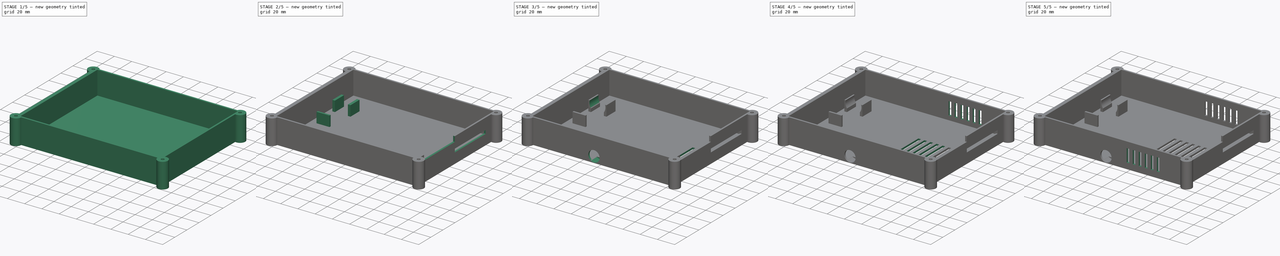
[diagram: build sequence overview — one tinted view per stage of 5, left to right]
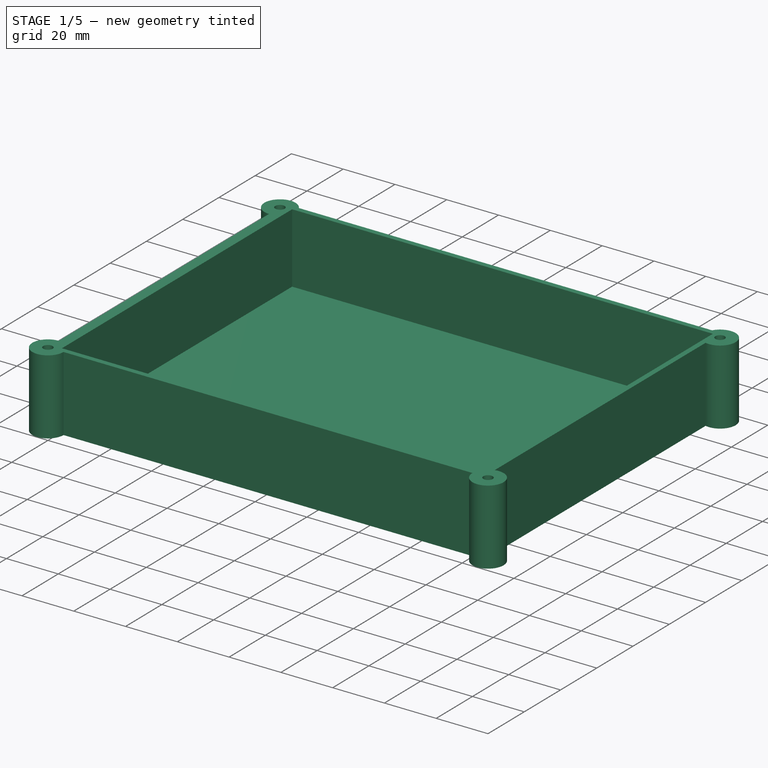
[diagram: stage 1 of 5 — iso view after this stage's code; geometry added in this stage tinted green]
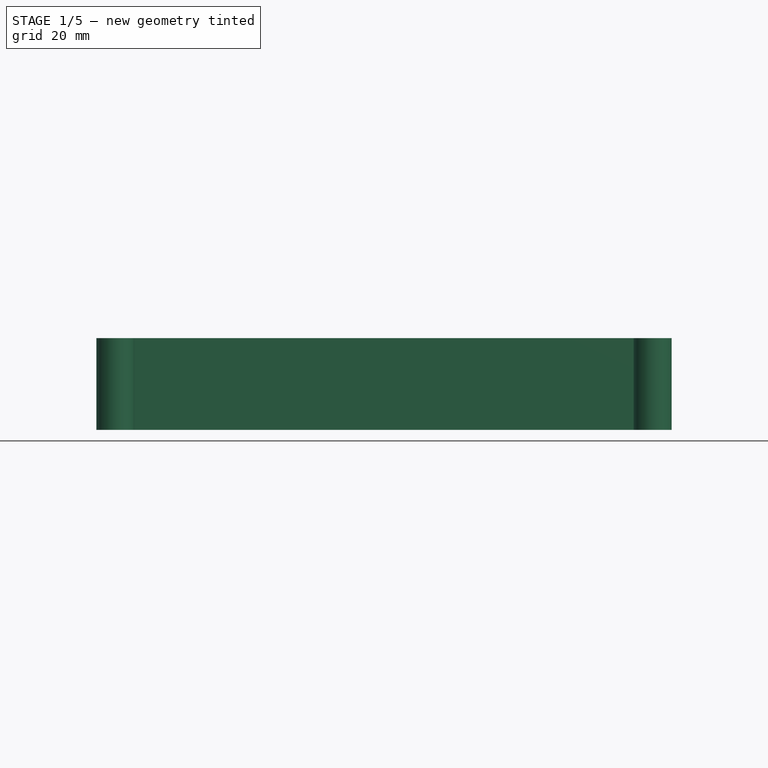
[diagram: stage 1 of 5 — front view after this stage's code; geometry added in this stage tinted green]
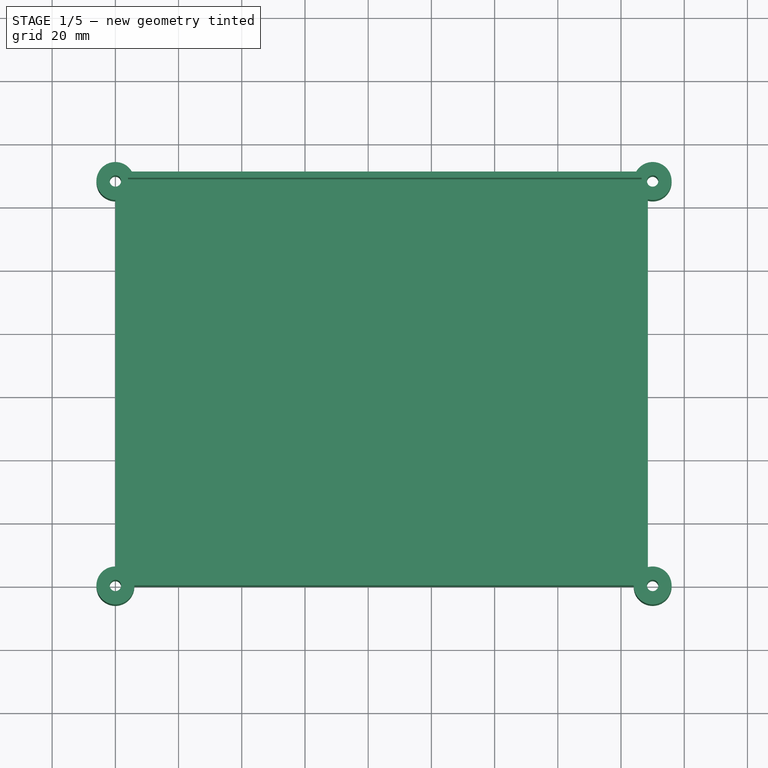
[diagram: stage 1 of 5 — top view after this stage's code; geometry added in this stage tinted green]
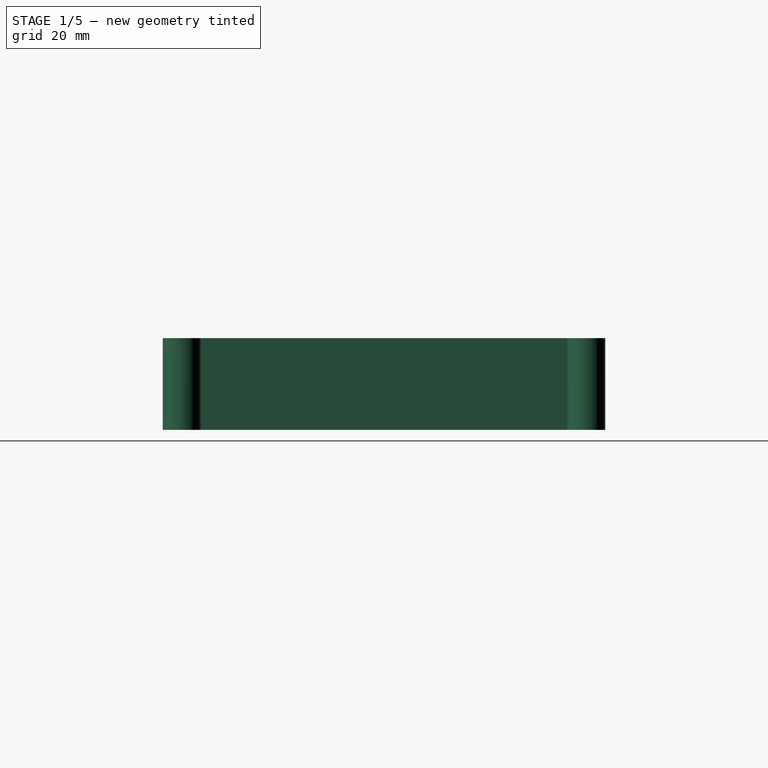
[diagram: stage 1 of 5 — right view after this stage's code; geometry added in this stage tinted green]
FCSTD DOCUMENT  (FreeCAD 0.19R24291 (Git))
Label: epaperFrameBackCover
License: All rights reserved
LicenseURL: http://en.wikipedia.org/wiki/All_rights_reserved
objects: Sketcher::SketchObject×11, PartDesign::Pocket×9, PartDesign::LinearPattern×3, PartDesign::Pad×2, PartDesign::Chamfer×1, PartDesign::Body×1
note: 39 computed .brp shape members not serialized (recipe doc carries the construction recipe); baked Part::Feature solids carry a one-line shape summary decoded from their .brp

FEATURE [Sketcher::SketchObject] Sketch
  FullyConstrained = true
  MapMode = 5
  Support = -> [XY_Plane]
  sketch-geometry (25):
    g0: LineSegment StartX=13.5 StartY=125 StartZ=0 EndX=165.5 EndY=125 EndZ=0
    g1: LineSegment StartX=165.5 StartY=125 StartZ=0 EndX=165.5 EndY=4 EndZ=0
    g2: LineSegment StartX=165.5 StartY=4 StartZ=0 EndX=13.5 EndY=4 EndZ=0
    g3: LineSegment StartX=13.5 StartY=4 StartZ=0 EndX=13.5 EndY=125 EndZ=0
    g4: LineSegment StartX=51.6 StartY=125 StartZ=0 EndX=61.1 EndY=125 EndZ=0
    g5: LineSegment StartX=61.1 StartY=125 StartZ=0 EndX=61.1 EndY=128 EndZ=0
    g6: LineSegment StartX=61.1 StartY=128 StartZ=0 EndX=51.6 EndY=128 EndZ=0
    g7: LineSegment StartX=51.6 StartY=128 StartZ=0 EndX=51.6 EndY=125 EndZ=0
    g8: LineSegment StartX=0 StartY=128 StartZ=0 EndX=170 EndY=128 EndZ=0
    g9: LineSegment StartX=170 StartY=128 StartZ=0 EndX=170 EndY=0 EndZ=0
    g10: LineSegment StartX=170 StartY=0 StartZ=0 EndX=0 EndY=0 EndZ=0
    g11: LineSegment StartX=0 StartY=0 StartZ=0 EndX=0 EndY=128 EndZ=0
    g12: ArcOfCircle CenterX=0 CenterY=0 CenterZ=0 NormalX=0 NormalY=0 NormalZ=1 AngleXU=0 Radius=6 StartAngle=1.5708 EndAngle=6.28319
    g13: ArcOfCircle CenterX=170 CenterY=0 CenterZ=0 NormalX=0 NormalY=0 NormalZ=1 AngleXU=0 Radius=6 StartAngle=3.14159 EndAngle=8.10666
    g14: ArcOfCircle CenterX=0 CenterY=128 CenterZ=0 NormalX=0 NormalY=0 NormalZ=1 AngleXU=0 Radius=6 StartAngle=0.523599 EndAngle=4.71239
    g15: GeomPoint X=0 Y=0 Z=0
    g16: LineSegment StartX=0 StartY=0 StartZ=0 EndX=168.5 EndY=0 EndZ=0
    g17: LineSegment StartX=168.5 StartY=0 StartZ=0 EndX=168.5 EndY=131 EndZ=0
    g18: LineSegment StartX=168.5 StartY=131 StartZ=0 EndX=0 EndY=131 EndZ=0
    g19: LineSegment StartX=0 StartY=131 StartZ=0 EndX=0 EndY=0 EndZ=0
    g20: LineSegment StartX=6 StartY=0 StartZ=0 EndX=164 EndY=0 EndZ=0
    g21: LineSegment StartX=168.5 StartY=5.80948 StartZ=0 EndX=168.5 EndY=122.191 EndZ=0
    g22: LineSegment StartX=164.804 StartY=131 StartZ=0 EndX=5.19615 EndY=131 EndZ=0
    g23: LineSegment StartX=0 StartY=122 StartZ=0 EndX=0 EndY=6 EndZ=0
    g24: ArcOfCircle CenterX=170 CenterY=128 CenterZ=0 NormalX=0 NormalY=0 NormalZ=1 AngleXU=0 Radius=6 StartAngle=4.45971 EndAngle=8.90118
  constraints (76):
    c: Coincident(g0,g1)
    c: Coincident(g1,g2)
    c: Coincident(g2,g3)
    c: Coincident(g3,g0)
    c: Horizontal(g0)
    c: Horizontal(g2)
    c: Vertical(g1)
    c: Vertical(g3)
    c: DistanceX(g0,g0) = 152
    c: DistanceY(g1,g1) = 121
    c: Coincident(g4,g5)
    c: Coincident(g5,g6)
    c: Coincident(g6,g7)
    c: Coincident(g7,g4)
    c: Horizontal(g4)
    c: Horizontal(g6)
    c: Vertical(g5)
    c: Vertical(g7)
    c: PointOnObject(g4,g0)
    c: DistanceX(g0,g6) = 38.1
    c: DistanceX(g6,g6) = 9.5
    c: DistanceY(g7,g7) = 3
    c: Coincident(g8,g9)
    c: Coincident(g9,g10)
    c: Coincident(g10,g11)
    c: Coincident(g11,g8)
    c: Horizontal(g8)
    c: Horizontal(g10)
    c: Vertical(g9)
    c: Vertical(g11)
    c: DistanceX(g8,g8) = 170
    c: DistanceY(g11,g11) = 128
    c: DistanceY(g9,g1) = 4
    c: DistanceX(g1,g9) = 4.5
    c: Coincident(g10,g-1)
    c: Coincident(g12,g-1)
    c: Coincident(g13,g9)
    c: Coincident(g14,g8)
    c: Radius(g12) = 6
    c: Equal(g12,g13)
    c: Coincident(g15,g12)
    c: Coincident(g16,g17)
    c: Coincident(g17,g18)
    c: Coincident(g18,g19)
    c: Coincident(g19,g16)
    c: Horizontal(g16)
    c: Horizontal(g18)
    c: Vertical(g17)
    c: Vertical(g19)
    c: Coincident(g16,g12)
    c: DistanceY(g14,g18) = 3
    c: DistanceX(g1,g16) = 3
    c: PointOnObject(g20,g10)
    c: PointOnObject(g20,g10)
    c: PointOnObject(g21,g17)
    c: PointOnObject(g21,g17)
    c: PointOnObject(g22,g18)
    c: PointOnObject(g22,g18)
    c: PointOnObject(g23,g11)
    c: PointOnObject(g23,g11)
    c: PointOnObject(g20,g12)
    c: PointOnObject(g20,g13)
    c: PointOnObject(g21,g13)
    c: PointOnObject(g23,g14)
    c: PointOnObject(g23,g12)
    c: PointOnObject(g12,g11)
    c: PointOnObject(g12,g10)
    c: PointOnObject(g14,g11)
    c: Coincident(g14,g22)
    c: Coincident(g24,g22)
    c: PointOnObject(g13,g10)
    c: PointOnObject(g13,g17)
    c: Coincident(g21,g24)
    c: Equal(g12,g14)
    c: Equal(g14,g24)
    c: Coincident(g24,g8)
FEATURE [PartDesign::Pad] Pad
  Direction = (1,1,1)
  Length = 29
  Length2 = 100
  Profile = -> Sketch
  Type = 0
FEATURE [Sketcher::SketchObject] Sketch001
  ExternalGeometry = -> [Pad]
  FullyConstrained = true
  MapMode = 5
  Placement = pos=(0,0,29) rot=(0,0,1;0rad)
  Support = -> [Pad]
  sketch-geometry (4):
    g0: LineSegment StartX=4 StartY=129 StartZ=0 EndX=166.5 EndY=129 EndZ=0
    g1: LineSegment StartX=166.5 StartY=129 StartZ=0 EndX=166.5 EndY=2 EndZ=0
    g2: LineSegment StartX=166.5 StartY=2 StartZ=0 EndX=4 EndY=2 EndZ=0
    g3: LineSegment StartX=4 StartY=2 StartZ=0 EndX=4 EndY=129 EndZ=0
  constraints (12):
    c: Coincident(g0,g1)
    c: Coincident(g1,g2)
    c: Coincident(g2,g3)
    c: Coincident(g3,g0)
    c: Horizontal(g0)
    c: Horizontal(g2)
    c: Vertical(g1)
    c: Vertical(g3)
    c: DistanceX(g-1,g2) = 4
    c: DistanceY(g-1,g2) = 2
    c: DistanceX(g0,g-3) = 2
    c: DistanceY(g0,g-4) = 2
FEATURE [PartDesign::Pocket] Pocket
  BaseFeature = -> Pad
  Length = 27
  Length2 = 100
  Profile = -> Sketch001
  Type = 0
FEATURE [Sketcher::SketchObject] Sketch002
  ExternalGeometry = -> [Pocket]
  FullyConstrained = true
  MapMode = 5
  Placement = pos=(0,0,29) rot=(0,0,1;0rad)
  Support = -> [Pocket]
  sketch-geometry (4):
    g0: Circle CenterX=0 CenterY=0 CenterZ=0 NormalX=0 NormalY=0 NormalZ=1 AngleXU=0 Radius=1.8
    g1: Circle CenterX=170 CenterY=0 CenterZ=0 NormalX=0 NormalY=0 NormalZ=1 AngleXU=0 Radius=1.8
    g2: Circle CenterX=0 CenterY=128 CenterZ=0 NormalX=0 NormalY=0 NormalZ=1 AngleXU=0 Radius=1.8
    g3: Circle CenterX=170 CenterY=128 CenterZ=0 NormalX=0 NormalY=0 NormalZ=1 AngleXU=0 Radius=1.8
  constraints (8):
    c: Coincident(g0,g-1)
    c: Coincident(g1,g-5)
    c: Coincident(g2,g-4)
    c: Coincident(g3,g-3)
    c: Radius(g0) = 1.8
    c: Equal(g0,g2)
    c: Equal(g2,g3)
    c: Equal(g3,g1)
FEATURE [PartDesign::Pocket] Pocket001
  BaseFeature = -> Pocket
  Length = 29
  Length2 = 100
  Profile = -> Sketch002
  Type = 0
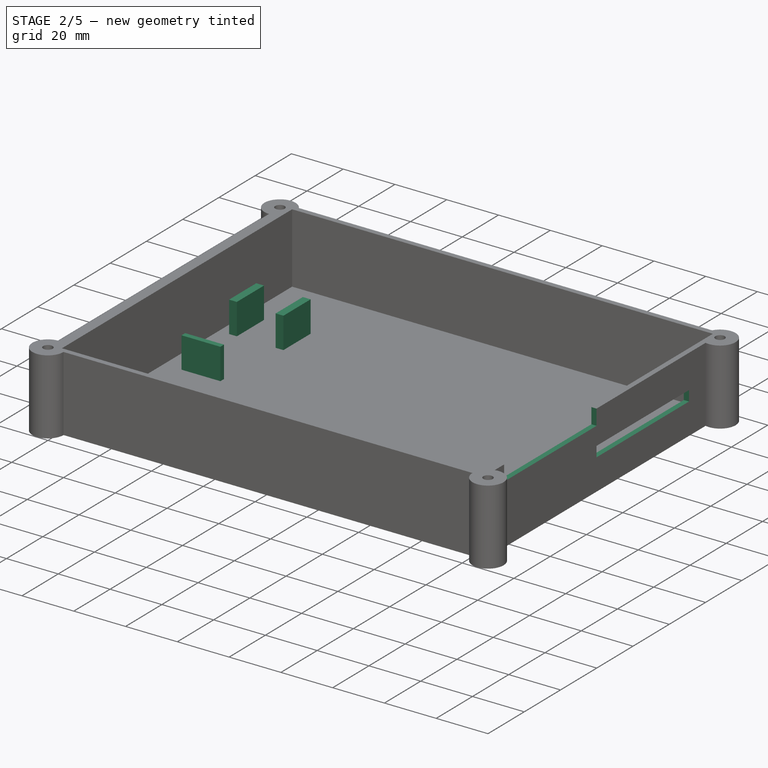
[diagram: stage 2 of 5 — iso view after this stage's code; geometry added in this stage tinted green]
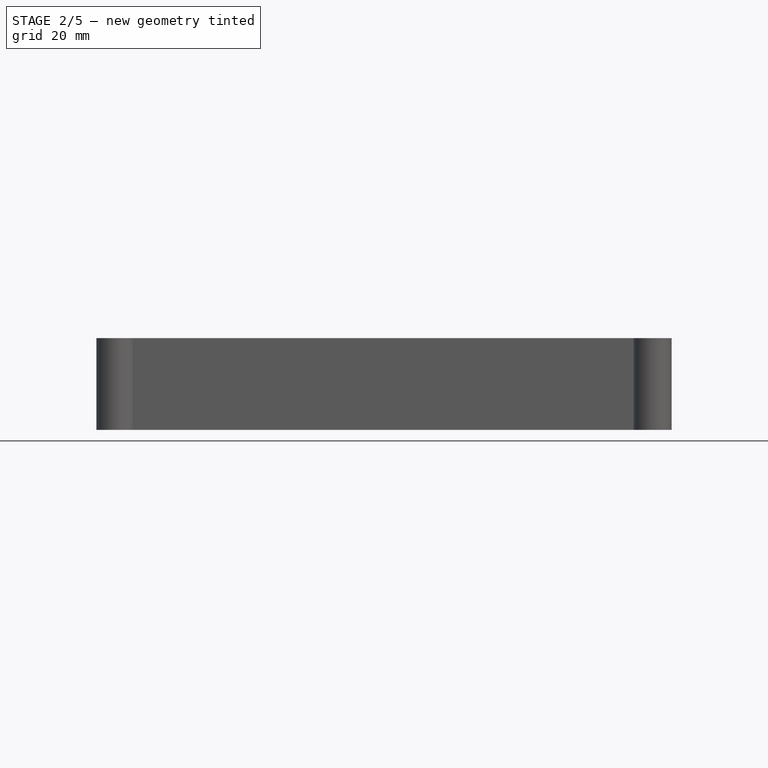
[diagram: stage 2 of 5 — front view after this stage's code; geometry added in this stage tinted green]
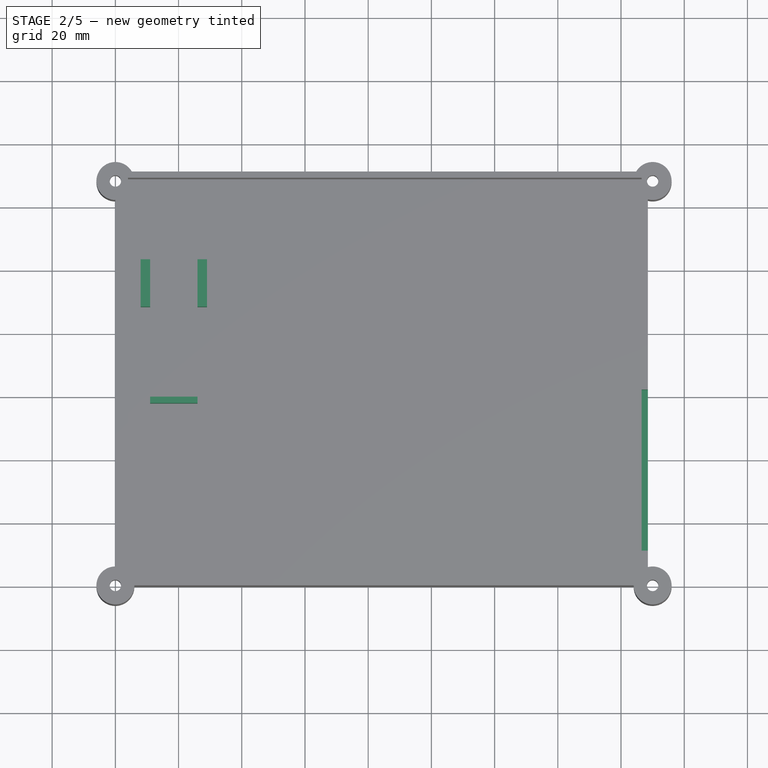
[diagram: stage 2 of 5 — top view after this stage's code; geometry added in this stage tinted green]
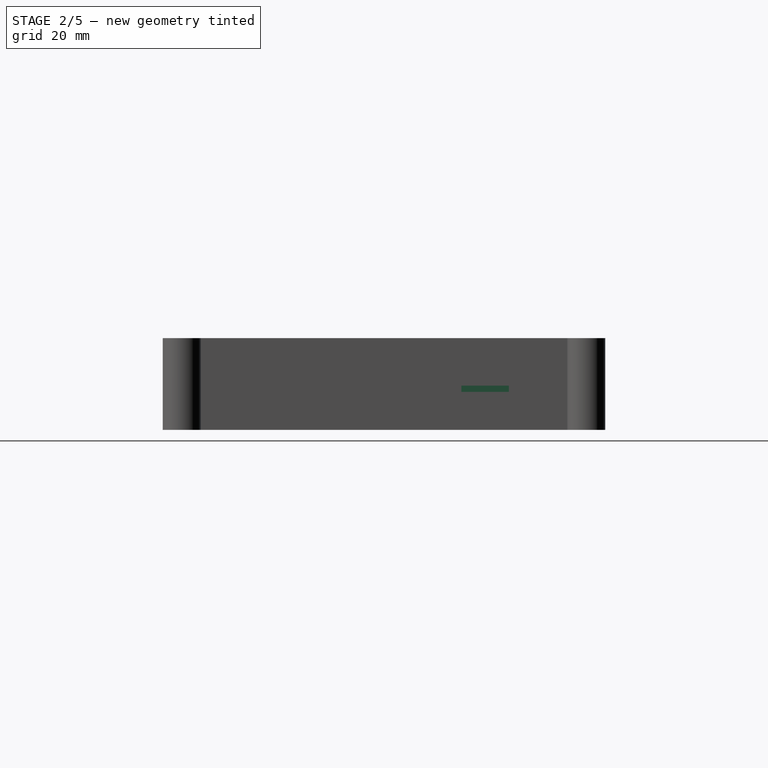
[diagram: stage 2 of 5 — right view after this stage's code; geometry added in this stage tinted green]
FEATURE [Sketcher::SketchObject] Sketch003
  ExternalGeometry = -> [Pocket001]
  FullyConstrained = true
  MapMode = 5
  Placement = pos=(0,0,0) rot=(1,0,0;3.14159rad)
  Support = -> [Pocket001]
  sketch-geometry (4):
    g0: Circle CenterX=0 CenterY=0 CenterZ=0 NormalX=0 NormalY=0 NormalZ=1 AngleXU=0 Radius=3
    g1: Circle CenterX=0 CenterY=-128 CenterZ=0 NormalX=0 NormalY=0 NormalZ=1 AngleXU=0 Radius=3
    g2: Circle CenterX=170 CenterY=-128 CenterZ=0 NormalX=0 NormalY=0 NormalZ=1 AngleXU=0 Radius=3
    g3: Circle CenterX=170 CenterY=0 CenterZ=0 NormalX=0 NormalY=0 NormalZ=1 AngleXU=0 Radius=3
  constraints (8):
    c: Coincident(g0,g-1)
    c: Radius(g0) = 3
    c: Coincident(g1,g-3)
    c: Coincident(g2,g-6)
    c: Coincident(g3,g-5)
    c: Equal(g0,g3)
    c: Equal(g3,g2)
    c: Equal(g2,g1)
FEATURE [PartDesign::Pocket] Pocket002
  BaseFeature = -> Pocket001
  Length = 14.1
  Length2 = 100
  Profile = -> Sketch003
  Type = 0
FEATURE [Sketcher::SketchObject] Sketch004
  FullyConstrained = true
  MapMode = 5
  Placement = pos=(168.5,0,0) rot=(0.57735,0.57735,0.57735;2.0944rad)
  Support = -> [Pocket002]
  sketch-geometry (9):
    g0: LineSegment StartX=11 StartY=29 StartZ=0 EndX=62 EndY=29 EndZ=0
    g1: LineSegment StartX=62 StartY=29 StartZ=0 EndX=62 EndY=23 EndZ=0
    g2: LineSegment StartX=62 StartY=23 StartZ=0 EndX=11 EndY=23 EndZ=0
    g3: LineSegment StartX=11 StartY=23 StartZ=0 EndX=11 EndY=29 EndZ=0
    g4: LineSegment StartX=62 StartY=16 StartZ=0 EndX=113 EndY=16 EndZ=0
    g5: LineSegment StartX=113 StartY=16 StartZ=0 EndX=113 EndY=12 EndZ=0
    g6: LineSegment StartX=113 StartY=12 StartZ=0 EndX=62 EndY=12 EndZ=0
    g7: LineSegment StartX=62 StartY=12 StartZ=0 EndX=62 EndY=16 EndZ=0
    g8: LineSegment StartX=62 StartY=23 StartZ=0 EndX=62 EndY=16 EndZ=0
  constraints (26):
    c: Coincident(g0,g1)
    c: Coincident(g1,g2)
    c: Coincident(g2,g3)
    c: Coincident(g3,g0)
    c: Horizontal(g0)
    c: Horizontal(g2)
    c: Vertical(g1)
    c: Vertical(g3)
    c: DistanceX(g-1,g0) = 11
    c: DistanceX(g-1,g0) = 62
    c: DistanceY(g-1,g0) = 29
    c: DistanceY(g1,g1) = 6
    c: Coincident(g4,g5)
    c: Coincident(g5,g6)
    c: Coincident(g6,g7)
    c: Coincident(g7,g4)
    c: Horizontal(g4)
    c: Horizontal(g6)
    c: Vertical(g5)
    c: Vertical(g7)
    c: Coincident(g8,g1)
    c: Coincident(g8,g4)
    c: Vertical(g8)
    c: DistanceY(g7,g7) = 4
    c: DistanceX(g6,g6) = 51
    c: DistanceY(g4,g0) = 13
FEATURE [PartDesign::Pocket] Pocket003
  BaseFeature = -> Pocket002
  Length = 2
  Length2 = 100
  Profile = -> Sketch004
  Type = 0
FEATURE [Sketcher::SketchObject] Sketch005
  ExternalGeometry = -> [Pocket003]
  FullyConstrained = true
  MapMode = 5
  Placement = pos=(0,0,2) rot=(0,0,1;0rad)
  Support = -> [Pocket003]
  sketch-geometry (16):
    g0: LineSegment StartX=8 StartY=103.5 StartZ=0 EndX=11 EndY=103.5 EndZ=0
    g1: LineSegment StartX=11 StartY=103.5 StartZ=0 EndX=11 EndY=88.5 EndZ=0
    g2: LineSegment StartX=11 StartY=88.5 StartZ=0 EndX=8 EndY=88.5 EndZ=0
    g3: LineSegment StartX=8 StartY=88.5 StartZ=0 EndX=8 EndY=103.5 EndZ=0
    g4: LineSegment StartX=11 StartY=103.5 StartZ=0 EndX=26 EndY=103.5 EndZ=0
    g5: LineSegment StartX=11 StartY=88.5 StartZ=0 EndX=26 EndY=88.5 EndZ=0
    g6: LineSegment StartX=26 StartY=103.5 StartZ=0 EndX=29 EndY=103.5 EndZ=0
    g7: LineSegment StartX=29 StartY=103.5 StartZ=0 EndX=29 EndY=88.5 EndZ=0
    g8: LineSegment StartX=29 StartY=88.5 StartZ=0 EndX=26 EndY=88.5 EndZ=0
    g9: LineSegment StartX=26 StartY=88.5 StartZ=0 EndX=26 EndY=103.5 EndZ=0
    g10: LineSegment StartX=11 StartY=60 StartZ=0 EndX=26 EndY=60 EndZ=0
    g11: LineSegment StartX=26 StartY=60 StartZ=0 EndX=26 EndY=58 EndZ=0
    g12: LineSegment StartX=26 StartY=58 StartZ=0 EndX=11 EndY=58 EndZ=0
    g13: LineSegment StartX=11 StartY=58 StartZ=0 EndX=11 EndY=60 EndZ=0
    g14: LineSegment StartX=11 StartY=88.5 StartZ=0 EndX=11 EndY=60 EndZ=0
    g15: LineSegment StartX=26 StartY=88.5 StartZ=0 EndX=26 EndY=60 EndZ=0
  constraints (44):
    c: Coincident(g0,g1)
    c: Coincident(g1,g2)
    c: Coincident(g2,g3)
    c: Coincident(g3,g0)
    c: Horizontal(g0)
    c: Horizontal(g2)
    c: Vertical(g1)
    c: Vertical(g3)
    c: Coincident(g4,g0)
    c: Horizontal(g4)
    c: Coincident(g5,g1)
    c: Horizontal(g5)
    c: Coincident(g6,g7)
    c: Coincident(g7,g8)
    c: Coincident(g8,g9)
    c: Coincident(g9,g6)
    c: Horizontal(g6)
    c: Horizontal(g8)
    c: Vertical(g7)
    c: Vertical(g9)
    c: Coincident(g6,g4)
    c: Coincident(g5,g8)
    c: Equal(g0,g6)
    c: DistanceX(g5,g5) = 15
    c: DistanceX(g0,g0) = 3
    c: DistanceY(g3,g3) = 15
    c: DistanceX(g-1,g0) = 8
    c: Coincident(g10,g11)
    c: Coincident(g11,g12)
    c: Coincident(g12,g13)
    c: Coincident(g13,g10)
    c: Horizontal(g10)
    c: Horizontal(g12)
    c: Vertical(g11)
    c: Vertical(g13)
    c: Coincident(g14,g1)
    c: Coincident(g14,g10)
    c: Vertical(g14)
    c: Coincident(g15,g8)
    c: Coincident(g15,g10)
    c: Vertical(g15)
    c: DistanceY(g11,g11) = 2
    c: DistanceY(g10,g-3) = 69
    c: DistanceY(g0,g-3) = 25.5
FEATURE [PartDesign::Pad] Pad001
  BaseFeature = -> Pocket003
  Direction = (1,1,1)
  Length = 12
  Length2 = 100
  Profile = -> Sketch005
  Type = 0
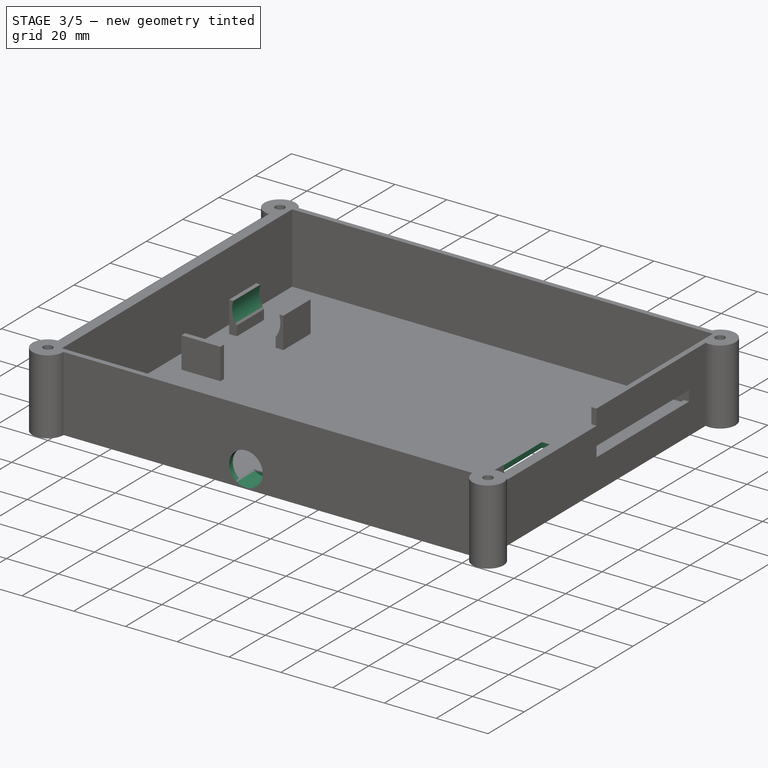
[diagram: stage 3 of 5 — iso view after this stage's code; geometry added in this stage tinted green]
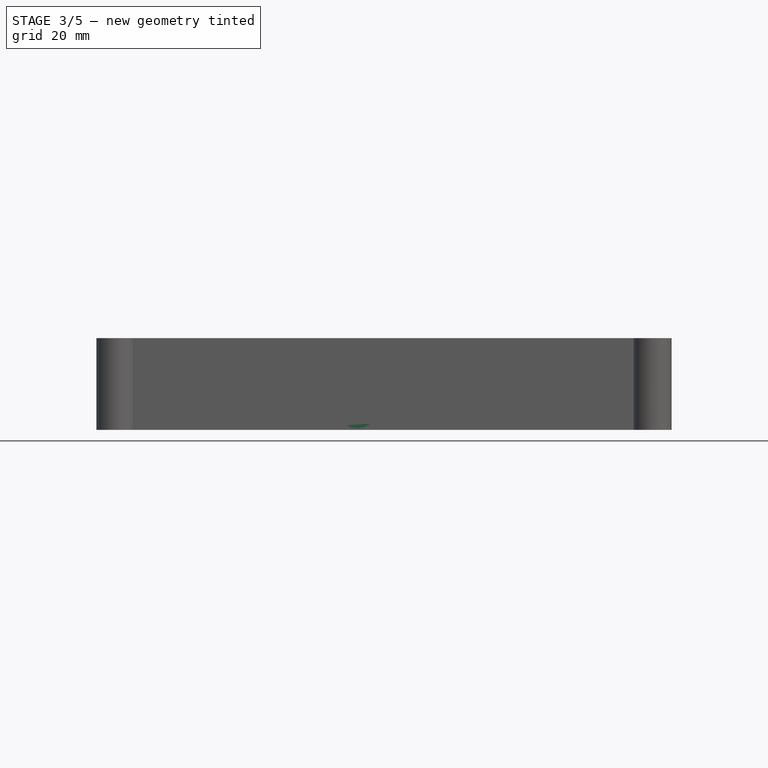
[diagram: stage 3 of 5 — front view after this stage's code; geometry added in this stage tinted green]
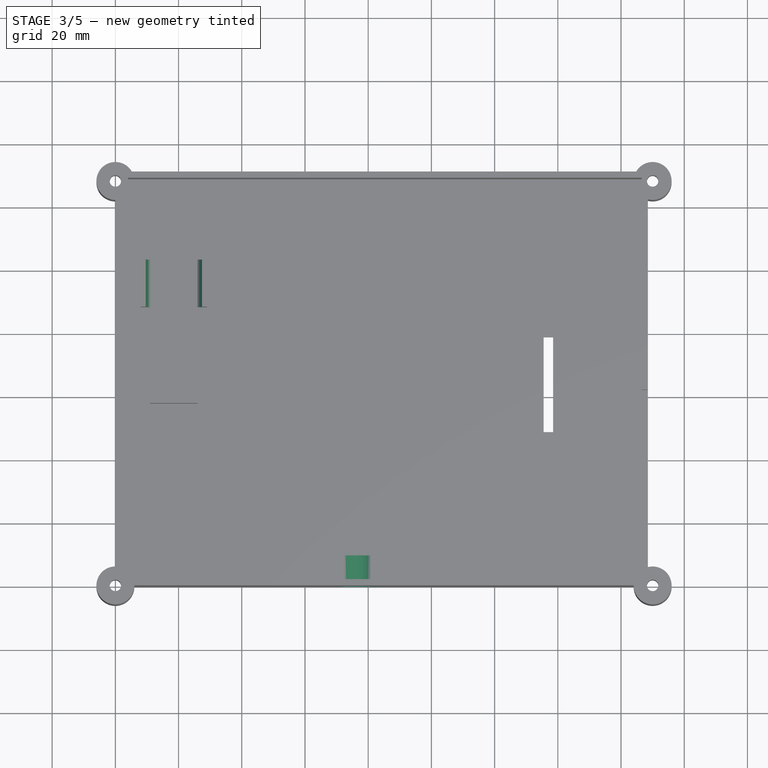
[diagram: stage 3 of 5 — top view after this stage's code; geometry added in this stage tinted green]
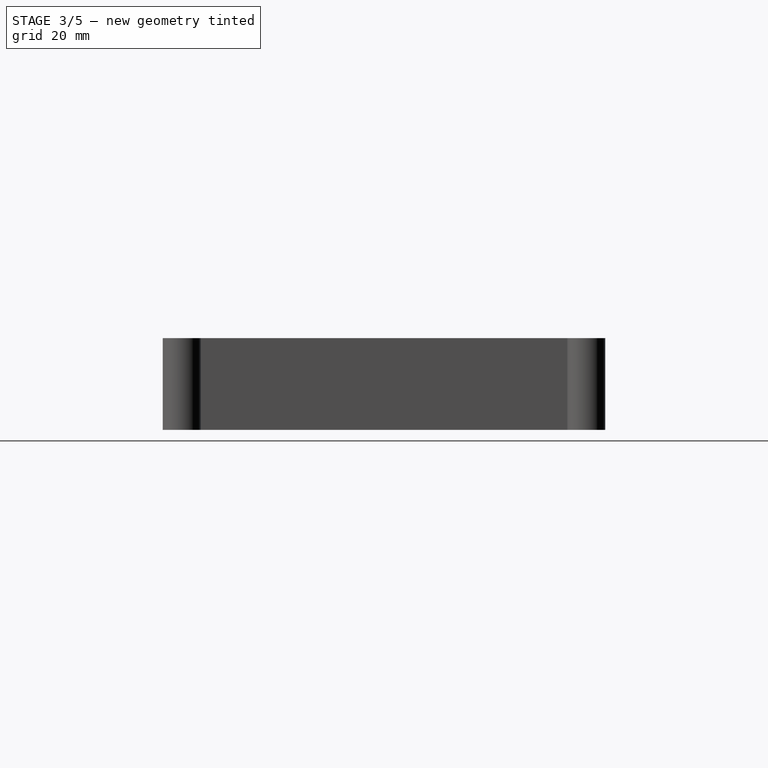
[diagram: stage 3 of 5 — right view after this stage's code; geometry added in this stage tinted green]
FEATURE [Sketcher::SketchObject] Sketch006
  ExternalGeometry = -> [Pad001]
  FullyConstrained = true
  MapMode = 5
  Placement = pos=(0,103.5,0) rot=(0,0.707107,0.707107;3.14159rad)
  Support = -> [Pad001]
  sketch-geometry (2):
    g0: LineSegment StartX=-26 StartY=11.3 StartZ=0 EndX=-11 EndY=11.3 EndZ=0
    g1: Circle CenterX=-18.5 CenterY=11.3 CenterZ=0 NormalX=0 NormalY=0 NormalZ=1 AngleXU=0 Radius=9.3
  constraints (7):
    c: PointOnObject(g0,g-4)
    c: PointOnObject(g0,g-3)
    c: Horizontal(g0)
    c: DistanceY(g0,g-4) = 2.7
    c: PointOnObject(g1,g0)
    c: DistanceX(g0,g1) = 7.5
    c: Radius(g1) = 9.3
FEATURE [PartDesign::Pocket] Pocket004
  BaseFeature = -> Pad001
  Length = 15
  Length2 = 100
  Profile = -> Sketch006
  Type = 0
FEATURE [Sketcher::SketchObject] Sketch007
  FullyConstrained = true
  MapMode = 5
  Placement = pos=(0,0,0) rot=(1,0,0;1.5708rad)
  Support = -> [Pocket004]
  sketch-geometry (2):
    g0: Circle CenterX=76.5 CenterY=7 CenterZ=0 NormalX=0 NormalY=0 NormalZ=1 AngleXU=0 Radius=6.5
    g1: Circle CenterX=76.5 CenterY=7 CenterZ=0 NormalX=0 NormalY=0 NormalZ=1 AngleXU=0 Radius=5
  constraints (5):
    c: DistanceX(g-1,g0) = 76.5
    c: DistanceY(g-1,g1) = 7
    c: Radius(g1) = 5
    c: Coincident(g1,g0)
    c: Radius(g0) = 6.5
FEATURE [PartDesign::Pocket] Pocket005
  BaseFeature = -> Pocket004
  Length = 10
  Length2 = 100
  Profile = -> Sketch007
  Type = 0
FEATURE [Sketcher::SketchObject] Sketch008
  FullyConstrained = true
  MapMode = 5
  Placement = pos=(0,0,0) rot=(1,0,0;3.14159rad)
  Support = -> [Pocket005]
  sketch-geometry (8):
    g0: LineSegment StartX=0 StartY=-49 StartZ=0 EndX=168.5 EndY=-49 EndZ=0
    g1: LineSegment StartX=168.5 StartY=-49 StartZ=0 EndX=168.5 EndY=-79 EndZ=0
    g2: LineSegment StartX=168.5 StartY=-79 StartZ=0 EndX=0 EndY=-79 EndZ=0
    g3: LineSegment StartX=0 StartY=-79 StartZ=0 EndX=0 EndY=-49 EndZ=0
    g4: LineSegment StartX=135.5 StartY=-49 StartZ=0 EndX=138.5 EndY=-49 EndZ=0
    g5: LineSegment StartX=138.5 StartY=-49 StartZ=0 EndX=138.5 EndY=-79 EndZ=0
    g6: LineSegment StartX=138.5 StartY=-79 StartZ=0 EndX=135.5 EndY=-79 EndZ=0
    g7: LineSegment StartX=135.5 StartY=-79 StartZ=0 EndX=135.5 EndY=-49 EndZ=0
  constraints (24):
    c: Coincident(g0,g1)
    c: Coincident(g1,g2)
    c: Coincident(g2,g3)
    c: Coincident(g3,g0)
    c: Horizontal(g0)
    c: Horizontal(g2)
    c: Vertical(g1)
    c: Vertical(g3)
    c: PointOnObject(g0,g-2)
    c: DistanceX(g0,g0) = 168.5
    c: DistanceY(g3,g3) = 30
    c: DistanceY(g0,g-1) = 49
    c: Coincident(g4,g5)
    c: Coincident(g5,g6)
    c: Coincident(g6,g7)
    c: Coincident(g7,g4)
    c: Horizontal(g4)
    c: Horizontal(g6)
    c: Vertical(g5)
    c: Vertical(g7)
    c: PointOnObject(g4,g0)
    c: PointOnObject(g5,g2)
    c: DistanceX(g4,g4) = 3
    c: DistanceX(g4,g0) = 30
FEATURE [PartDesign::Pocket] Pocket006
  BaseFeature = -> Pocket005
  Length = 2
  Length2 = 100
  Profile = -> Sketch008
  Type = 0
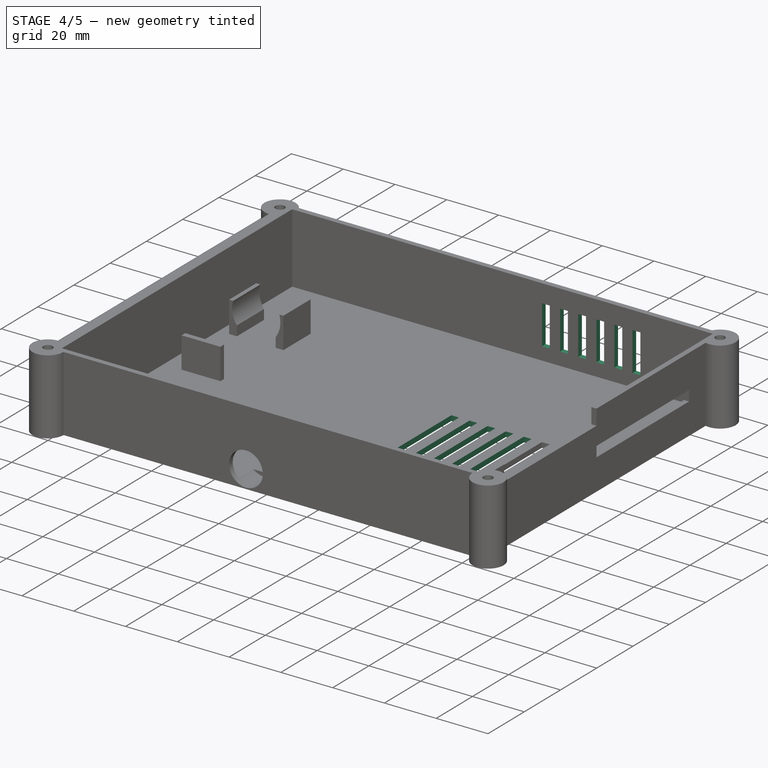
[diagram: stage 4 of 5 — iso view after this stage's code; geometry added in this stage tinted green]
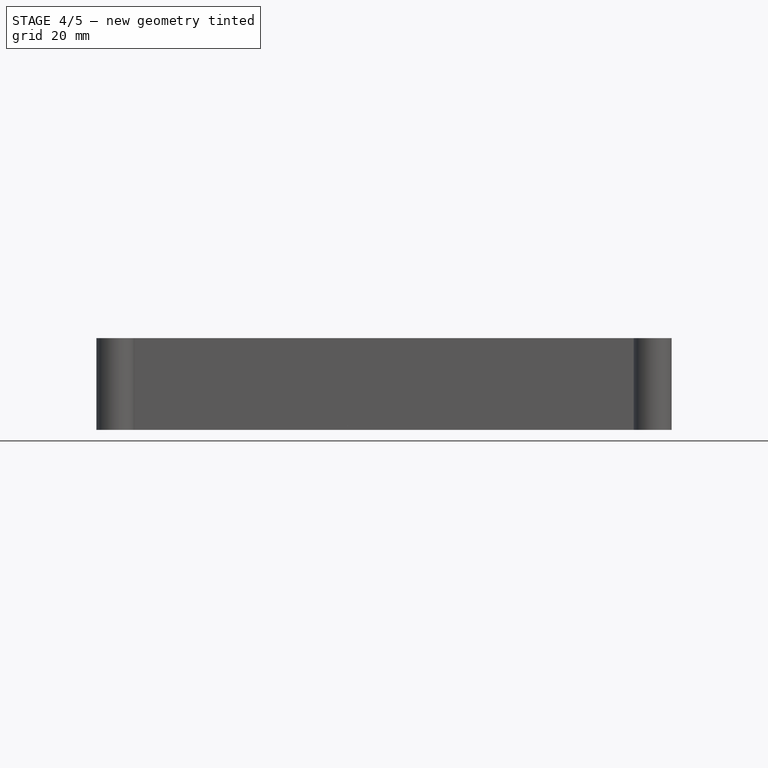
[diagram: stage 4 of 5 — front view after this stage's code; geometry added in this stage tinted green]
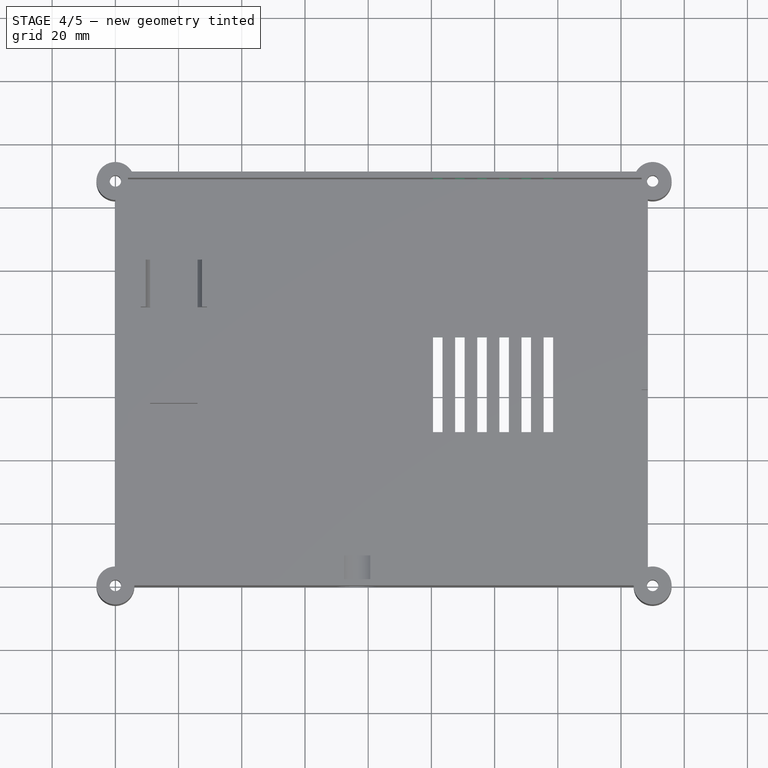
[diagram: stage 4 of 5 — top view after this stage's code; geometry added in this stage tinted green]
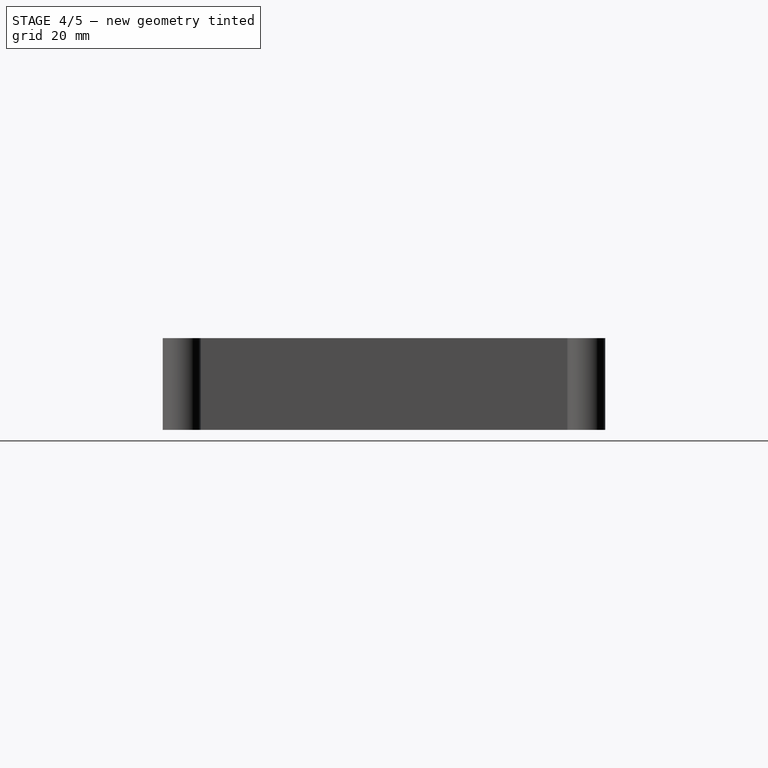
[diagram: stage 4 of 5 — right view after this stage's code; geometry added in this stage tinted green]
FEATURE [PartDesign::LinearPattern] LinearPattern
  BaseFeature = -> Pocket006
  Direction = -> X_Axis
  Length = 35
  Occurrences = 6
  Originals = -> [Pocket006]
  Reversed = true
FEATURE [Sketcher::SketchObject] Sketch009
  FullyConstrained = false
  MapMode = 5
  Placement = pos=(0,131,0) rot=(0,0.707107,0.707107;3.14159rad)
  Support = -> [LinearPattern]
  sketch-geometry (5):
    g0: LineSegment StartX=0 StartY=33.6291 StartZ=0 EndX=-168.5 EndY=33.6291 EndZ=0
    g1: LineSegment StartX=-138.5 StartY=22 StartZ=0 EndX=-135.5 EndY=22 EndZ=0
    g2: LineSegment StartX=-135.5 StartY=22 StartZ=0 EndX=-135.5 EndY=7 EndZ=0
    g3: LineSegment StartX=-135.5 StartY=7 StartZ=0 EndX=-138.5 EndY=7 EndZ=0
    g4: LineSegment StartX=-138.5 StartY=7 StartZ=0 EndX=-138.5 EndY=22 EndZ=0
  constraints (15):
    c: PointOnObject(g0,g-2)
    c: Horizontal(g0)
    c: DistanceX(g0,g0) = 168.5
    c: Coincident(g1,g2)
    c: Coincident(g2,g3)
    c: Coincident(g3,g4)
    c: Coincident(g4,g1)
    c: Horizontal(g1)
    c: Horizontal(g3)
    c: Vertical(g2)
    c: Vertical(g4)
    c: DistanceX(g1,g1) = 3
    c: DistanceY(g-1,g2) = 7
    c: DistanceX(g0,g1) = 30
    c: DistanceY(g4,g4) = 15
FEATURE [PartDesign::Pocket] Pocket007
  BaseFeature = -> LinearPattern
  Length = 2
  Length2 = 100
  Profile = -> Sketch009
  Type = 0
FEATURE [PartDesign::LinearPattern] LinearPattern001
  BaseFeature = -> Pocket007
  Direction = -> X_Axis
  Length = 35
  Occurrences = 6
  Originals = -> [Pocket007]
  Reversed = true
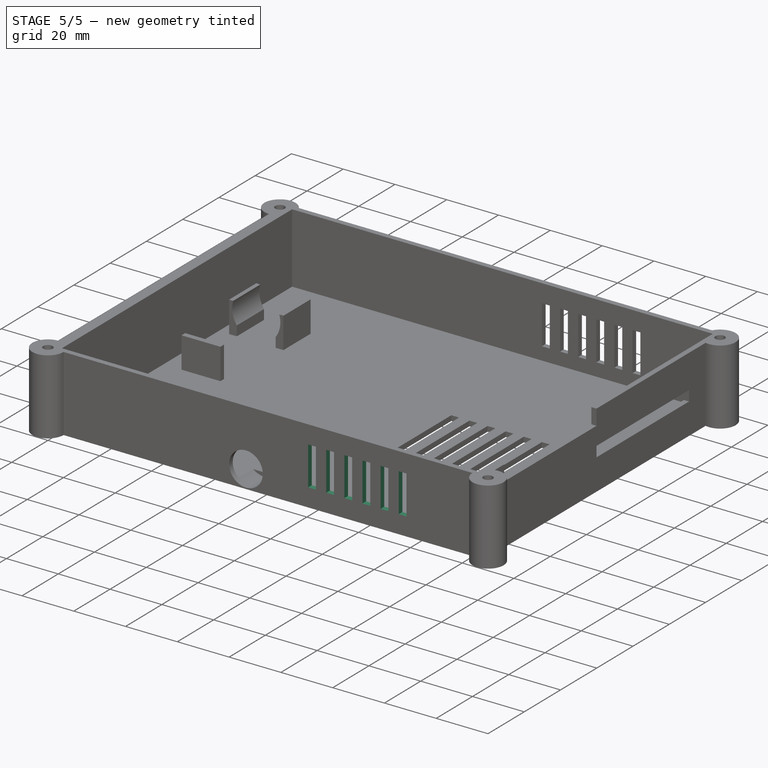
[diagram: stage 5 of 5 — iso view after this stage's code; geometry added in this stage tinted green]
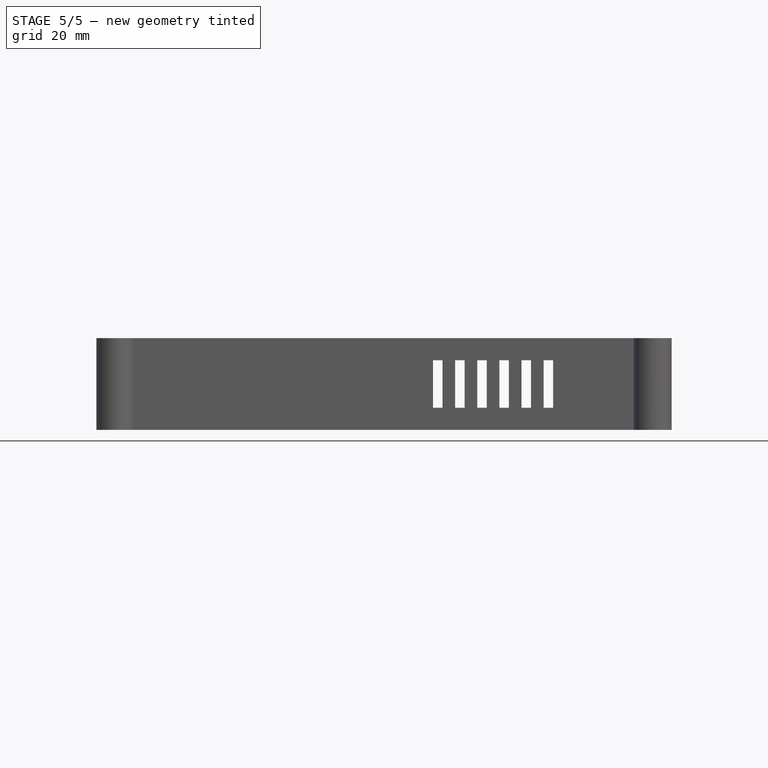
[diagram: stage 5 of 5 — front view after this stage's code; geometry added in this stage tinted green]
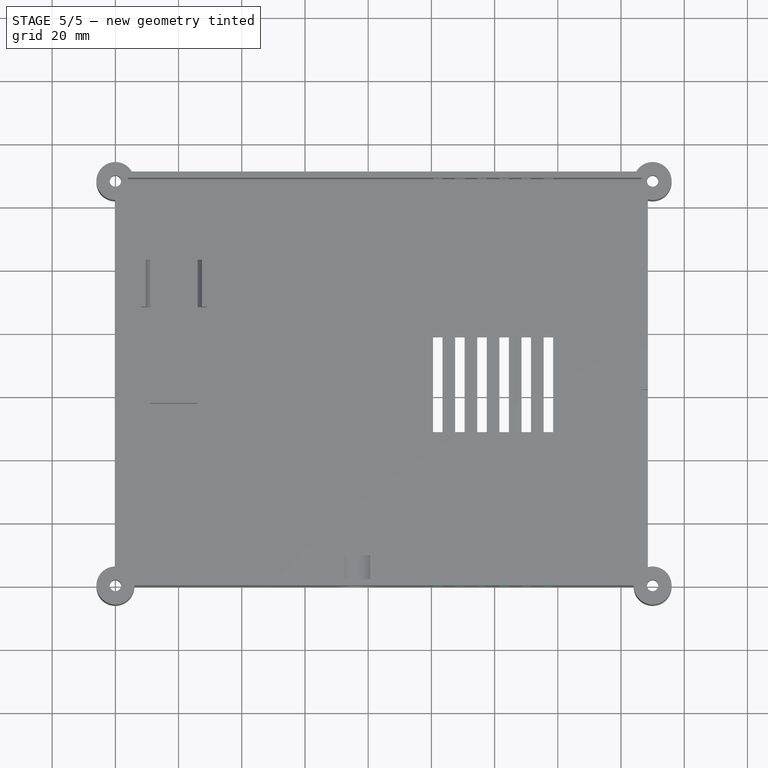
[diagram: stage 5 of 5 — top view after this stage's code; geometry added in this stage tinted green]
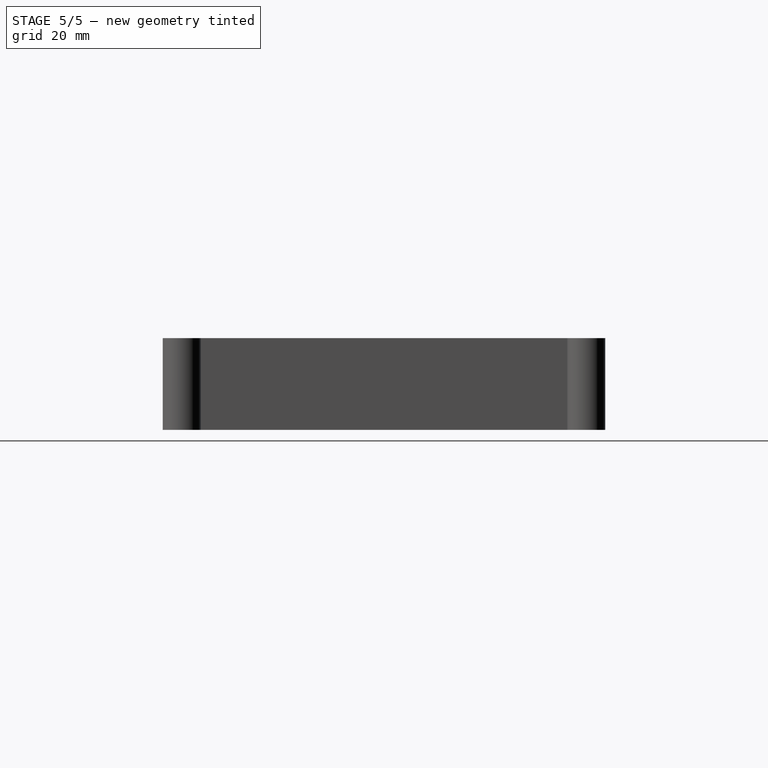
[diagram: stage 5 of 5 — right view after this stage's code; geometry added in this stage tinted green]
FEATURE [Sketcher::SketchObject] Sketch010
  FullyConstrained = false
  MapMode = 5
  Placement = pos=(0,0,0) rot=(1,0,0;1.5708rad)
  Support = -> [LinearPattern001]
  sketch-geometry (5):
    g0: LineSegment StartX=0 StartY=33.2313 StartZ=0 EndX=168.5 EndY=33.2313 EndZ=0
    g1: LineSegment StartX=135.5 StartY=22 StartZ=0 EndX=138.5 EndY=22 EndZ=0
    g2: LineSegment StartX=138.5 StartY=22 StartZ=0 EndX=138.5 EndY=7 EndZ=0
    g3: LineSegment StartX=138.5 StartY=7 StartZ=0 EndX=135.5 EndY=7 EndZ=0
    g4: LineSegment StartX=135.5 StartY=7 StartZ=0 EndX=135.5 EndY=22 EndZ=0
  constraints (15):
    c: PointOnObject(g0,g-2)
    c: Horizontal(g0)
    c: DistanceX(g0,g0) = 168.5
    c: Coincident(g1,g2)
    c: Coincident(g2,g3)
    c: Coincident(g3,g4)
    c: Coincident(g4,g1)
    c: Horizontal(g1)
    c: Horizontal(g3)
    c: Vertical(g2)
    c: Vertical(g4)
    c: DistanceX(g1,g1) = 3
    c: DistanceY(g2,g2) = 15
    c: DistanceY(g-1,g3) = 7
    c: DistanceX(g1,g0) = 30
FEATURE [PartDesign::Pocket] Pocket008
  BaseFeature = -> LinearPattern001
  Length = 2
  Length2 = 100
  Profile = -> Sketch010
  Type = 0
FEATURE [PartDesign::LinearPattern] LinearPattern002
  BaseFeature = -> Pocket008
  Direction = -> X_Axis
  Length = 35
  Occurrences = 6
  Originals = -> [Pocket008]
  Reversed = true
FEATURE [PartDesign::Chamfer] Chamfer
  Angle = 45
  Base = -> LinearPattern002 [Edge280,Edge276,Edge274,Edge278]
  BaseFeature = -> LinearPattern002
  ChamferType = 0
  FlipDirection = false
  Size = 1
  Size2 = 1
  SupportTransform = false
FEATURE [PartDesign::Body] Body
  Group = -> [Sketch,Pad,Sketch001,Pocket,Sketch002,Pocket001,Sketch003,Pocket002,Sketch004,Pocket003,Sketch005,Pad001,Sketch006,Pocket004,Sketch007,Pocket005,Sketch008,Pocket006,LinearPattern,Sketch009,Pocket007,LinearPattern001,Sketch010,Pocket008,LinearPattern002,Chamfer]
  Origin = -> Origin
  Tip = -> Chamfer
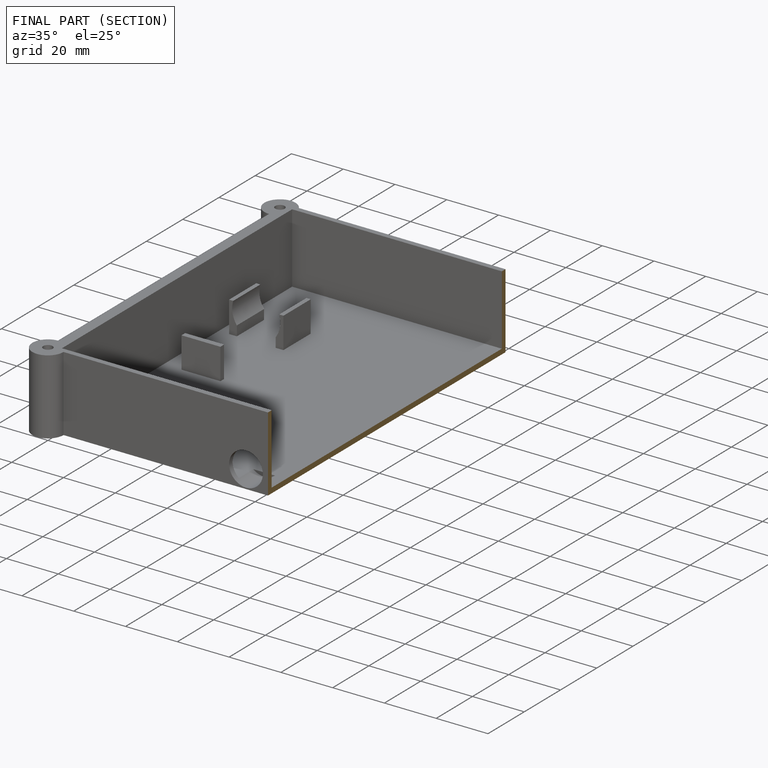
[diagram: finished part — half-section view (interior)]
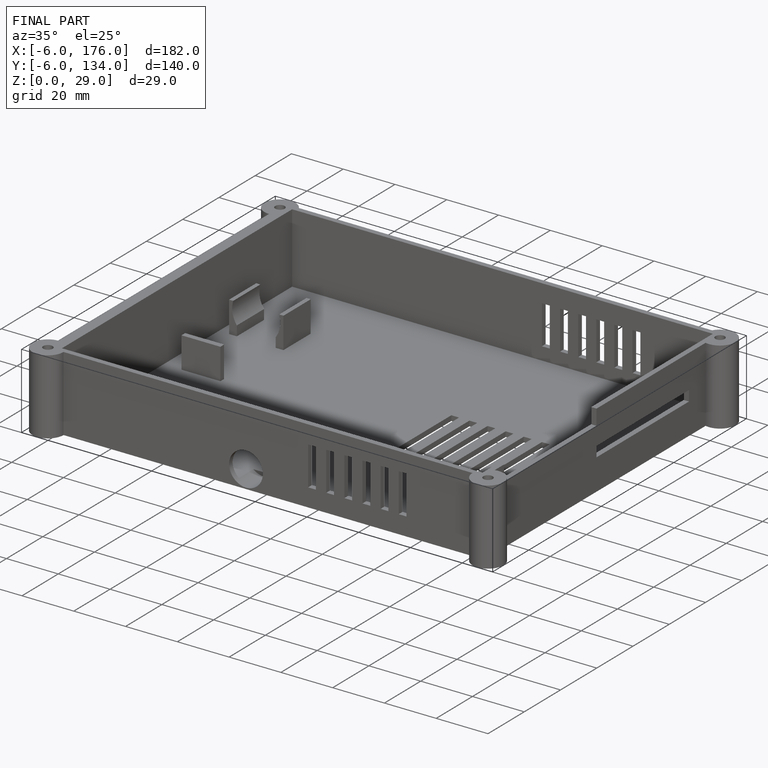
[diagram: finished part — iso view with bounding-box wireframe]
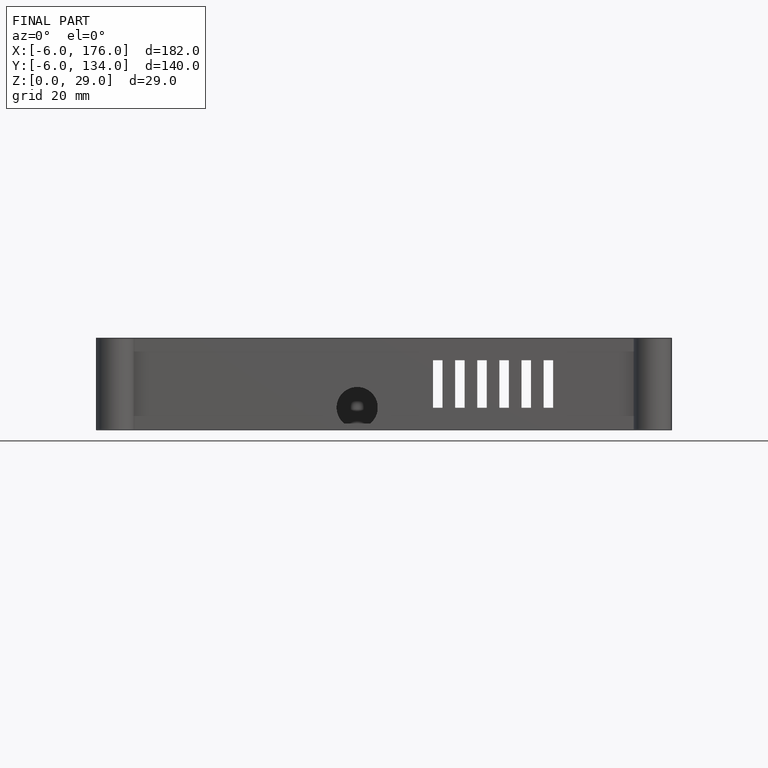
[diagram: finished part — front view with bounding-box wireframe]
